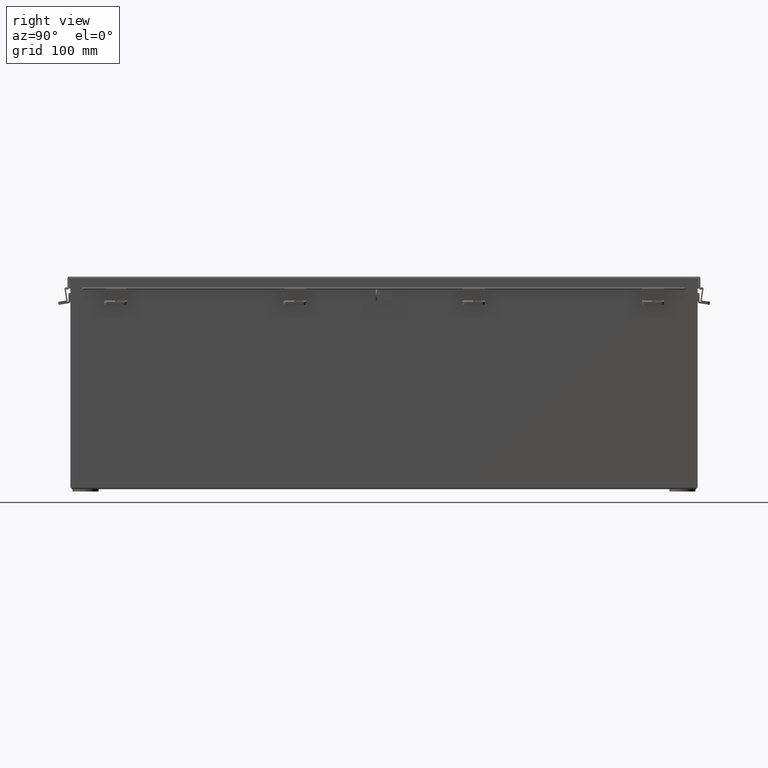
[diagram: clean part render]
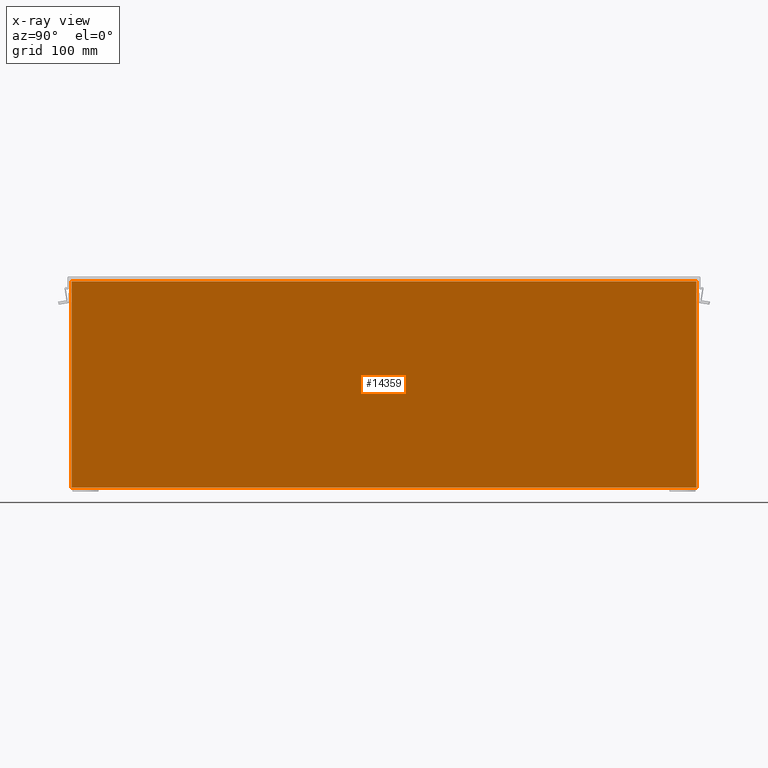
[diagram: x-ray — body ghosted, one internal face saturated and labeled with its STEP entity id]
A machine part, right view, then the same camera in x-ray: the body is ghosted and one INTERNAL B-rep face — a face not visible from any outside direction — is saturated and labeled: STEP entity #14359.
In plain terms, the highlighted planar face has unit normal (-1, 0, 0).
Its self-contained STEP definition (entity closure, byte-faithful):
#878 = CARTESIAN_POINT ( 'NONE',  ( 5.925299999999999100, -17.92530000000000000, 0.0000000000000000000 ) ) ;
#2158 = VERTEX_POINT ( 'NONE', #15390 ) ;
#3180 = DIRECTION ( 'NONE',  ( -3.503965158194252100E-015, -0.0000000000000000000, -1.000000000000000000 ) ) ;
#3535 = VECTOR ( 'NONE', #24609, 39.37007874015748100 ) ;
#3656 = VECTOR ( 'NONE', #28432, 39.37007874015748100 ) ;
#4135 = FACE_OUTER_BOUND ( 'NONE', #7324, .T. ) ;
#4802 = LINE ( 'NONE', #9880, #22246 ) ;
#4920 = EDGE_CURVE ( 'NONE', #17302, #26549, #4802, .T. ) ;
#6324 = ORIENTED_EDGE ( 'NONE', *, *, #24845, .F. ) ;
#6782 = ORIENTED_EDGE ( 'NONE', *, *, #4920, .F. ) ;
#7324 = EDGE_LOOP ( 'NONE', ( #6324, #8752, #6782, #10081 ) ) ;
#8166 = LINE ( 'NONE', #878, #19513 ) ;
#8412 = AXIS2_PLACEMENT_3D ( 'NONE', #13241, #29208, #15510 ) ;
#8449 = VERTEX_POINT ( 'NONE', #18204 ) ;
#8752 = ORIENTED_EDGE ( 'NONE', *, *, #28293, .F. ) ;
#9880 = CARTESIAN_POINT ( 'NONE',  ( 5.925300000000040900, 17.92530000000000000, 11.85060000000000000 ) ) ;
#10081 = ORIENTED_EDGE ( 'NONE', *, *, #12482, .F. ) ;
#10991 = CARTESIAN_POINT ( 'NONE',  ( 5.925299999999999100, -17.92530000000000000, 0.01300000000000011600 ) ) ;
#12045 = DIRECTION ( 'NONE',  ( 3.503965158194252100E-015, -0.0000000000000000000, 1.000000000000000000 ) ) ;
#12472 = CARTESIAN_POINT ( 'NONE',  ( 5.925300000000040900, 17.92530000000000000, 11.83759999999999800 ) ) ;
#12482 = EDGE_CURVE ( 'NONE', #2158, #17302, #15596, .T. ) ;
#13241 = CARTESIAN_POINT ( 'NONE',  ( 5.925299999999999100, 0.0000000000000000000, -2.102669252623462500E-014 ) ) ;
#14200 = CARTESIAN_POINT ( 'NONE',  ( 5.925299999999999100, 17.92530000000000000, 0.01300000000000011600 ) ) ;
#14359 = ADVANCED_FACE ( 'NONE', ( #4135 ), #26912, .T. ) ;
#14823 = CARTESIAN_POINT ( 'NONE',  ( 5.925300000000040900, 17.92530000000000000, 11.83759999999999800 ) ) ;
#15390 = CARTESIAN_POINT ( 'NONE',  ( 5.925299999999999100, -17.92530000000000000, 0.01300000000000011600 ) ) ;
#15510 = DIRECTION ( 'NONE',  ( 3.503965158194251300E-015, 0.0000000000000000000, 1.000000000000000000 ) ) ;
#15596 = LINE ( 'NONE', #10991, #3535 ) ;
#15715 = LINE ( 'NONE', #12472, #3656 ) ;
#17302 = VERTEX_POINT ( 'NONE', #14200 ) ;
#18204 = CARTESIAN_POINT ( 'NONE',  ( 5.925300000000040900, -17.92530000000000000, 11.83759999999999800 ) ) ;
#19513 = VECTOR ( 'NONE', #3180, 39.37007874015748100 ) ;
#22246 = VECTOR ( 'NONE', #12045, 39.37007874015748100 ) ;
#24609 = DIRECTION ( 'NONE',  ( 0.0000000000000000000, 1.000000000000000000, 0.0000000000000000000 ) ) ;
#24845 = EDGE_CURVE ( 'NONE', #8449, #2158, #8166, .T. ) ;
#26549 = VERTEX_POINT ( 'NONE', #14823 ) ;
#26912 = PLANE ( 'NONE',  #8412 ) ;
#28293 = EDGE_CURVE ( 'NONE', #26549, #8449, #15715, .T. ) ;
#28432 = DIRECTION ( 'NONE',  ( -0.0000000000000000000, -1.000000000000000000, -0.0000000000000000000 ) ) ;
#29208 = DIRECTION ( 'NONE',  ( -1.000000000000000000, 0.0000000000000000000, 3.503965158194251300E-015 ) ) ;